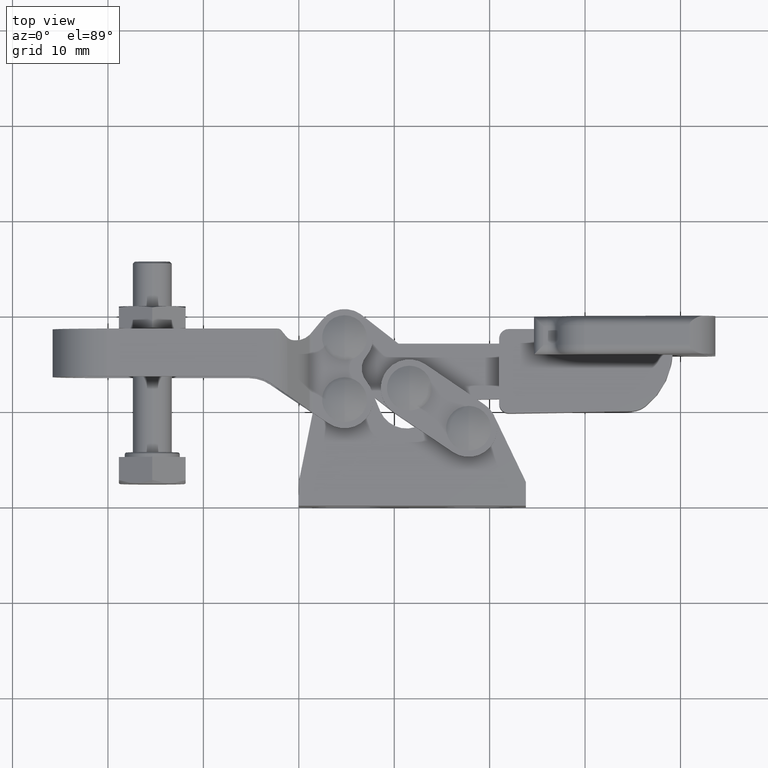
[diagram: clean part render]
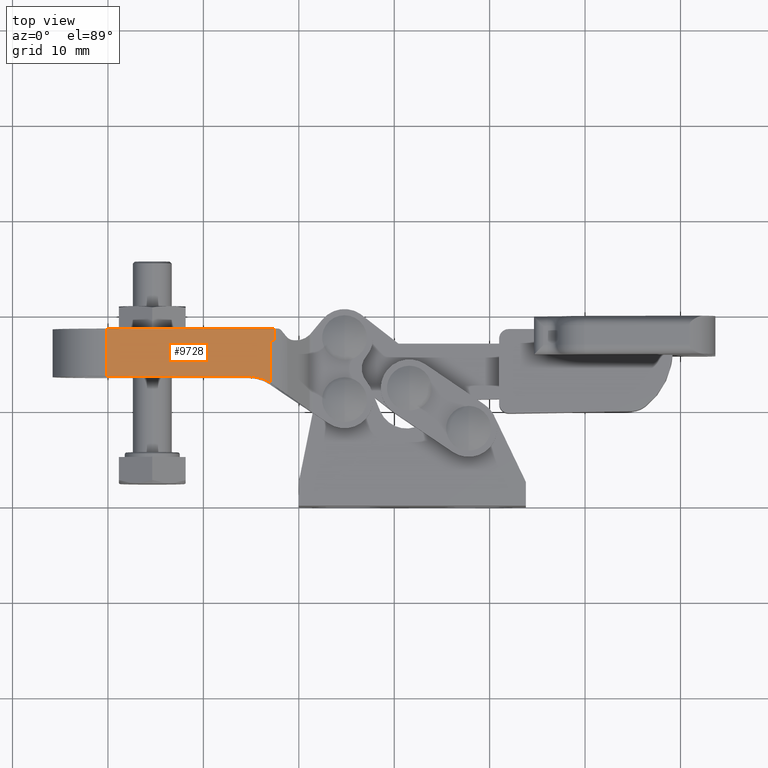
[diagram: same view with one face highlighted and labeled with its STEP entity id]
A machine part, top view. The second image highlights one B-rep face of the part: STEP entity #9728.
In plain terms, the highlighted planar face has unit normal (-0, 0, -1).
Its self-contained STEP definition (entity closure, byte-faithful):
#148 = AXIS2_PLACEMENT_3D ( 'NONE', #7008, #9354, #4679 ) ;
#188 = PLANE ( 'NONE',  #148 ) ;
#289 = LINE ( 'NONE', #2884, #7370 ) ;
#312 = CARTESIAN_POINT ( 'NONE',  ( -13.98654398031854000, 17.30000245742332200, 5.700000000000003700 ) ) ;
#696 = EDGE_CURVE ( 'NONE', #2666, #2905, #2688, .T. ) ;
#871 = CIRCLE ( 'NONE', #7815, 4.000000000000016000 ) ;
#1704 = CARTESIAN_POINT ( 'NONE',  ( -26.14000245664014000, 13.50000245742332300, 5.700000000000003700 ) ) ;
#1757 = VERTEX_POINT ( 'NONE', #4683 ) ;
#1924 = EDGE_CURVE ( 'NONE', #6598, #5140, #289, .T. ) ;
#1943 = DIRECTION ( 'NONE',  ( 1.000000000000000000, 0.0000000000000000000, 0.0000000000000000000 ) ) ;
#2037 = LINE ( 'NONE', #6185, #7834 ) ;
#2095 = VECTOR ( 'NONE', #6700, 1000.000000000000000 ) ;
#2299 = DIRECTION ( 'NONE',  ( 0.0000000000000000000, -1.000000000000000000, 0.0000000000000000000 ) ) ;
#2308 = ORIENTED_EDGE ( 'NONE', *, *, #3180, .T. ) ;
#2666 = VERTEX_POINT ( 'NONE', #2779 ) ;
#2688 = LINE ( 'NONE', #312, #4070 ) ;
#2779 = CARTESIAN_POINT ( 'NONE',  ( -2.994981057761837700, 17.30000245742332200, 5.700000000000003700 ) ) ;
#2861 = VECTOR ( 'NONE', #8506, 1000.000000000000000 ) ;
#2884 = CARTESIAN_POINT ( 'NONE',  ( -24.14000245664014000, 18.50000245742332800, 5.700000000000003700 ) ) ;
#2905 = VERTEX_POINT ( 'NONE', #9222 ) ;
#2955 = VECTOR ( 'NONE', #2299, 1000.000000000000000 ) ;
#3118 = EDGE_CURVE ( 'NONE', #5140, #4246, #2037, .T. ) ;
#3180 = EDGE_CURVE ( 'NONE', #6504, #1757, #871, .T. ) ;
#3188 = LINE ( 'NONE', #7587, #2955 ) ;
#3412 = ORIENTED_EDGE ( 'NONE', *, *, #5149, .F. ) ;
#3600 = ORIENTED_EDGE ( 'NONE', *, *, #7983, .F. ) ;
#4070 = VECTOR ( 'NONE', #1943, 1000.000000000000000 ) ;
#4131 = CARTESIAN_POINT ( 'NONE',  ( -2.563228186422624500, 18.50000245742331000, 5.700000000000003700 ) ) ;
#4246 = VERTEX_POINT ( 'NONE', #9075 ) ;
#4342 = CARTESIAN_POINT ( 'NONE',  ( -20.14000145548621700, 18.50000245742332800, 5.700000000000002800 ) ) ;
#4629 = ORIENTED_EDGE ( 'NONE', *, *, #3118, .T. ) ;
#4679 = DIRECTION ( 'NONE',  ( -1.000000000000000000, 0.0000000000000000000, 1.517691524187735600E-016 ) ) ;
#4683 = CARTESIAN_POINT ( 'NONE',  ( -2.994981057761837700, 12.81971024965994100, 5.700000000000003700 ) ) ;
#4686 = DIRECTION ( 'NONE',  ( -0.0000000000000000000, -1.000000000000000000, -0.0000000000000000000 ) ) ;
#4812 = LINE ( 'NONE', #1704, #2861 ) ;
#5140 = VERTEX_POINT ( 'NONE', #4342 ) ;
#5149 = EDGE_CURVE ( 'NONE', #2666, #1757, #6108, .T. ) ;
#5173 = ORIENTED_EDGE ( 'NONE', *, *, #7472, .T. ) ;
#5350 = DIRECTION ( 'NONE',  ( -1.000000000000000000, 8.308272860745644600E-016, -0.0000000000000000000 ) ) ;
#5484 = FACE_OUTER_BOUND ( 'NONE', #7957, .T. ) ;
#5904 = CARTESIAN_POINT ( 'NONE',  ( -2.994981057761837700, 21.45606182658943700, 5.700000000000000200 ) ) ;
#6108 = LINE ( 'NONE', #5904, #2095 ) ;
#6185 = CARTESIAN_POINT ( 'NONE',  ( -20.14000145548620300, 21.45606182658943700, 5.700000000000002800 ) ) ;
#6504 = VERTEX_POINT ( 'NONE', #7089 ) ;
#6525 = ORIENTED_EDGE ( 'NONE', *, *, #696, .T. ) ;
#6598 = VERTEX_POINT ( 'NONE', #4131 ) ;
#6611 = ORIENTED_EDGE ( 'NONE', *, *, #1924, .T. ) ;
#6700 = DIRECTION ( 'NONE',  ( -0.0000000000000000000, -1.000000000000000000, -0.0000000000000000000 ) ) ;
#7008 = CARTESIAN_POINT ( 'NONE',  ( -20.14000145548620300, 21.45606182658943700, 5.700000000000002800 ) ) ;
#7037 = DIRECTION ( 'NONE',  ( -0.0000000000000000000, -0.0000000000000000000, -1.000000000000000000 ) ) ;
#7089 = CARTESIAN_POINT ( 'NONE',  ( -5.226469389383567900, 13.50000245742339000, 5.700000000000003700 ) ) ;
#7370 = VECTOR ( 'NONE', #5350, 1000.000000000000000 ) ;
#7472 = EDGE_CURVE ( 'NONE', #4246, #6504, #4812, .T. ) ;
#7545 = DIRECTION ( 'NONE',  ( 1.000000000000000000, 0.0000000000000000000, 0.0000000000000000000 ) ) ;
#7587 = CARTESIAN_POINT ( 'NONE',  ( -2.563228186422624500, -2.658308531326140800, 5.700000000000003700 ) ) ;
#7815 = AXIS2_PLACEMENT_3D ( 'NONE', #7988, #7037, #7545 ) ;
#7834 = VECTOR ( 'NONE', #4686, 1000.000000000000000 ) ;
#7957 = EDGE_LOOP ( 'NONE', ( #6611, #4629, #5173, #2308, #3412, #6525, #3600 ) ) ;
#7983 = EDGE_CURVE ( 'NONE', #6598, #2905, #3188, .T. ) ;
#7988 = CARTESIAN_POINT ( 'NONE',  ( -5.226469389383567900, 9.500002457423374100, 5.700000000000003700 ) ) ;
#8506 = DIRECTION ( 'NONE',  ( 1.000000000000000000, 3.234949128180488800E-015, 0.0000000000000000000 ) ) ;
#9075 = CARTESIAN_POINT ( 'NONE',  ( -20.14000145548620300, 13.50000245742334000, 5.700000000000003700 ) ) ;
#9222 = CARTESIAN_POINT ( 'NONE',  ( -2.563228186422624500, 17.30000245742332200, 5.700000000000003700 ) ) ;
#9354 = DIRECTION ( 'NONE',  ( -1.517691524187735600E-016, 0.0000000000000000000, -1.000000000000000000 ) ) ;
#9728 = ADVANCED_FACE ( 'NONE', ( #5484 ), #188, .F. ) ;